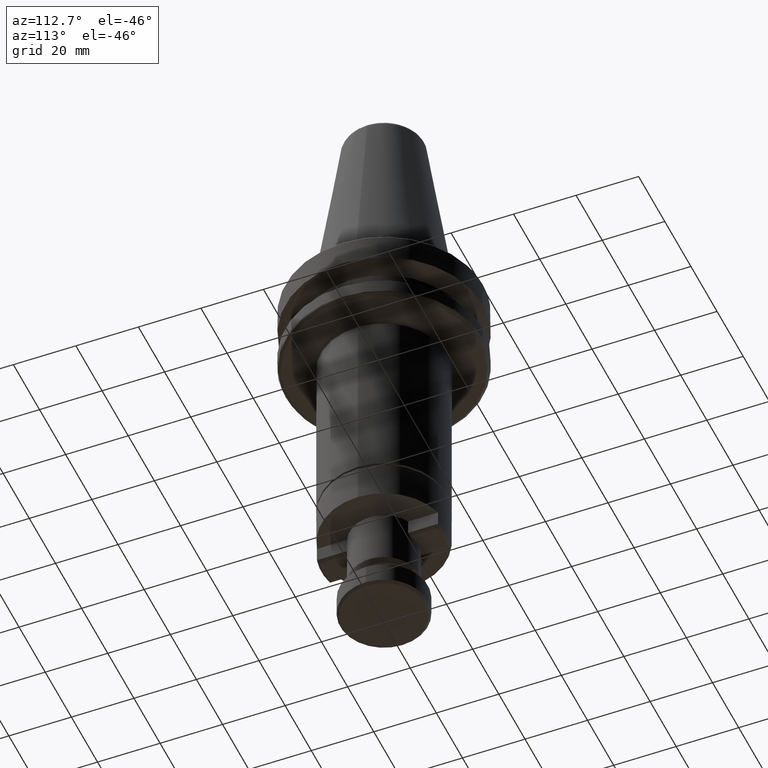
[diagram: clean part render]
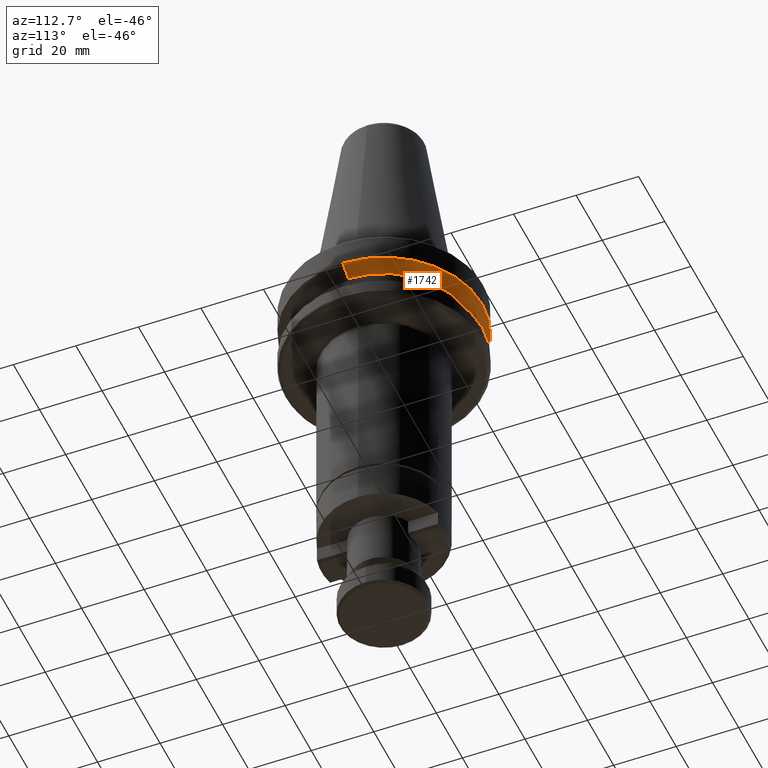
[diagram: same view with one face highlighted and labeled with its STEP entity id]
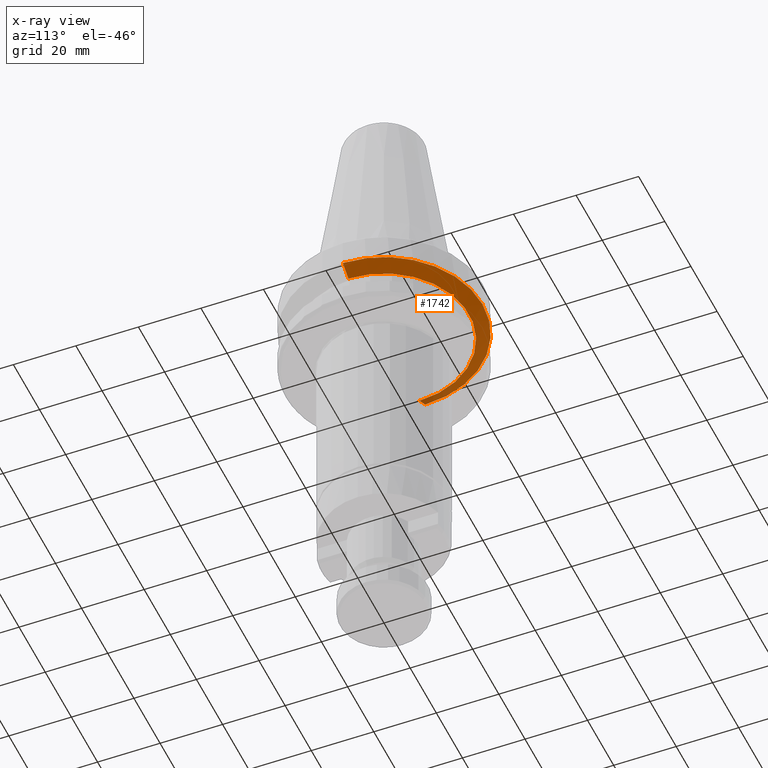
[diagram: x-ray of the same camera — body ghosted, the highlighted face saturated]
A machine part, auxiliary view. The second image highlights one B-rep face of the part: STEP entity #1742.
The next image is the same camera in x-ray: the body ghosted, the highlighted face saturated — about 5% of this face is hidden behind the body in this view.
In plain terms, the highlighted conical surface has half-angle 60 deg.
Its self-contained STEP definition (entity closure, byte-faithful):
#16 = LINE ( 'NONE', #1790, #913 ) ;
#80 = CARTESIAN_POINT ( 'NONE',  ( -31.50000000000000000, 3.857637417314162700E-015, -5.374612065816353200 ) ) ;
#213 = DIRECTION ( 'NONE',  ( -0.0000000000000000000, -0.0000000000000000000, -1.000000000000000000 ) ) ;
#333 = CIRCLE ( 'NONE', #1583, 27.19242992080628300 ) ;
#385 = DIRECTION ( 'NONE',  ( -0.8660254037844396000, 1.060575238724908000E-016, 0.4999999999999983900 ) ) ;
#640 = FACE_OUTER_BOUND ( 'NONE', #1413, .T. ) ;
#788 = CARTESIAN_POINT ( 'NONE',  ( 27.19242992080628300, 0.0000000000000000000, -7.861588810592012400 ) ) ;
#895 = DIRECTION ( 'NONE',  ( 0.8660254037844396000, 0.0000000000000000000, 0.4999999999999983900 ) ) ;
#913 = VECTOR ( 'NONE', #895, 1000.000000000000000 ) ;
#916 = VERTEX_POINT ( 'NONE', #1165 ) ;
#943 = VERTEX_POINT ( 'NONE', #1432 ) ;
#961 = VECTOR ( 'NONE', #385, 1000.000000000000000 ) ;
#986 = ORIENTED_EDGE ( 'NONE', *, *, #1242, .T. ) ;
#1165 = CARTESIAN_POINT ( 'NONE',  ( 3.857637417314162700E-015, 31.50000000000000000, -5.374612065816353200 ) ) ;
#1236 = CARTESIAN_POINT ( 'NONE',  ( -31.50000000000000000, 3.857637417314162700E-015, -5.374612065816353200 ) ) ;
#1242 = EDGE_CURVE ( 'NONE', #916, #2692, #1990, .T. ) ;
#1314 = ORIENTED_EDGE ( 'NONE', *, *, #3157, .F. ) ;
#1413 = EDGE_LOOP ( 'NONE', ( #1314, #2670, #1490, #986, #2685 ) ) ;
#1432 = CARTESIAN_POINT ( 'NONE',  ( -27.19242992080628300, 3.593874821834788000E-015, -7.861588810592012400 ) ) ;
#1465 = LINE ( 'NONE', #80, #961 ) ;
#1490 = ORIENTED_EDGE ( 'NONE', *, *, #3443, .T. ) ;
#1521 = CARTESIAN_POINT ( 'NONE',  ( 0.0000000000000000000, 0.0000000000000000000, -5.374612065816353200 ) ) ;
#1537 = CARTESIAN_POINT ( 'NONE',  ( 0.0000000000000000000, 0.0000000000000000000, -7.861588810592012400 ) ) ;
#1583 = AXIS2_PLACEMENT_3D ( 'NONE', #1537, #3553, #1825 ) ;
#1698 = AXIS2_PLACEMENT_3D ( 'NONE', #1926, #213, #2225 ) ;
#1742 = ADVANCED_FACE ( 'NONE', ( #640 ), #3619, .T. ) ;
#1790 = CARTESIAN_POINT ( 'NONE',  ( 31.50000000000000000, 0.0000000000000000000, -5.374612065816353200 ) ) ;
#1825 = DIRECTION ( 'NONE',  ( -1.000000000000000000, 0.0000000000000000000, 0.0000000000000000000 ) ) ;
#1889 = CARTESIAN_POINT ( 'NONE',  ( 31.50000000000000000, 0.0000000000000000000, -5.374612065816353200 ) ) ;
#1926 = CARTESIAN_POINT ( 'NONE',  ( 0.0000000000000000000, 0.0000000000000000000, -5.374612065816353200 ) ) ;
#1946 = VERTEX_POINT ( 'NONE', #788 ) ;
#1990 = CIRCLE ( 'NONE', #3368, 31.50000000000000000 ) ;
#2065 = EDGE_CURVE ( 'NONE', #1946, #2692, #16, .T. ) ;
#2225 = DIRECTION ( 'NONE',  ( -1.000000000000000000, 0.0000000000000000000, 0.0000000000000000000 ) ) ;
#2415 = DIRECTION ( 'NONE',  ( -0.0000000000000000000, -0.0000000000000000000, -1.000000000000000000 ) ) ;
#2454 = DIRECTION ( 'NONE',  ( -1.000000000000000000, 0.0000000000000000000, 0.0000000000000000000 ) ) ;
#2670 = ORIENTED_EDGE ( 'NONE', *, *, #3731, .T. ) ;
#2685 = ORIENTED_EDGE ( 'NONE', *, *, #2065, .F. ) ;
#2692 = VERTEX_POINT ( 'NONE', #1889 ) ;
#2848 = AXIS2_PLACEMENT_3D ( 'NONE', #3243, #3038, #3052 ) ;
#3010 = CIRCLE ( 'NONE', #1698, 31.50000000000000000 ) ;
#3038 = DIRECTION ( 'NONE',  ( 0.0000000000000000000, 0.0000000000000000000, 1.000000000000000000 ) ) ;
#3052 = DIRECTION ( 'NONE',  ( 1.000000000000000000, 0.0000000000000000000, 0.0000000000000000000 ) ) ;
#3129 = VERTEX_POINT ( 'NONE', #1236 ) ;
#3157 = EDGE_CURVE ( 'NONE', #943, #1946, #333, .T. ) ;
#3243 = CARTESIAN_POINT ( 'NONE',  ( 0.0000000000000000000, 0.0000000000000000000, -5.374612065816353200 ) ) ;
#3368 = AXIS2_PLACEMENT_3D ( 'NONE', #1521, #2415, #2454 ) ;
#3443 = EDGE_CURVE ( 'NONE', #3129, #916, #3010, .T. ) ;
#3553 = DIRECTION ( 'NONE',  ( -0.0000000000000000000, -0.0000000000000000000, -1.000000000000000000 ) ) ;
#3619 = CONICAL_SURFACE ( 'NONE', #2848, 31.50000000000000000, 1.047197551196599600 ) ;
#3731 = EDGE_CURVE ( 'NONE', #943, #3129, #1465, .T. ) ;